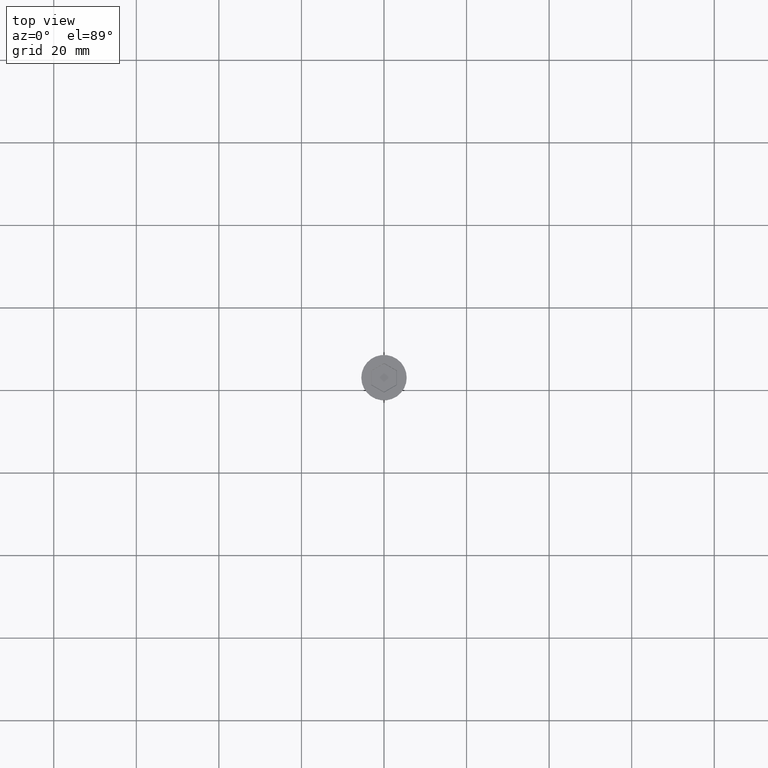
[diagram: clean part render]
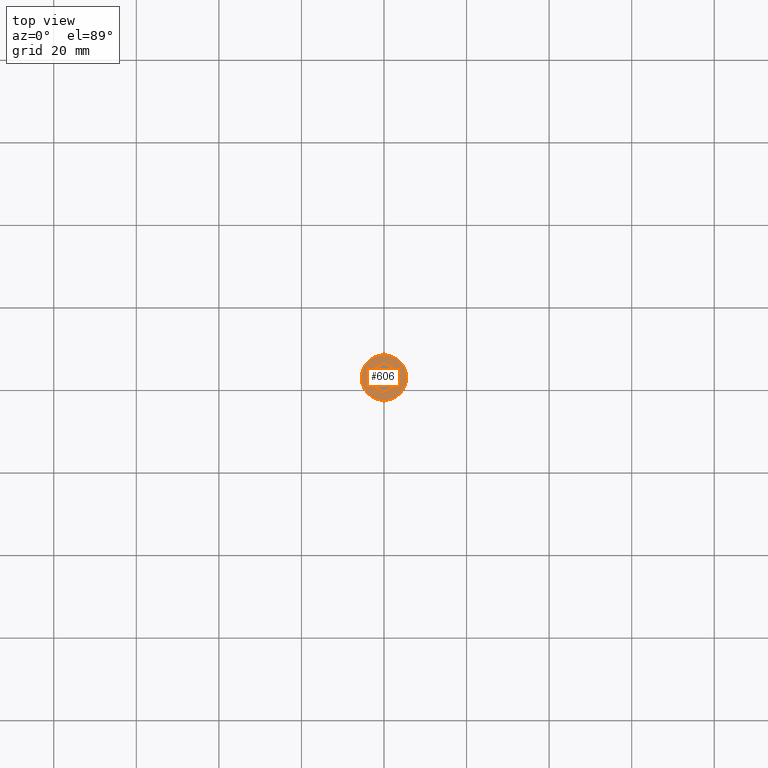
[diagram: same view with one face highlighted and labeled with its STEP entity id]
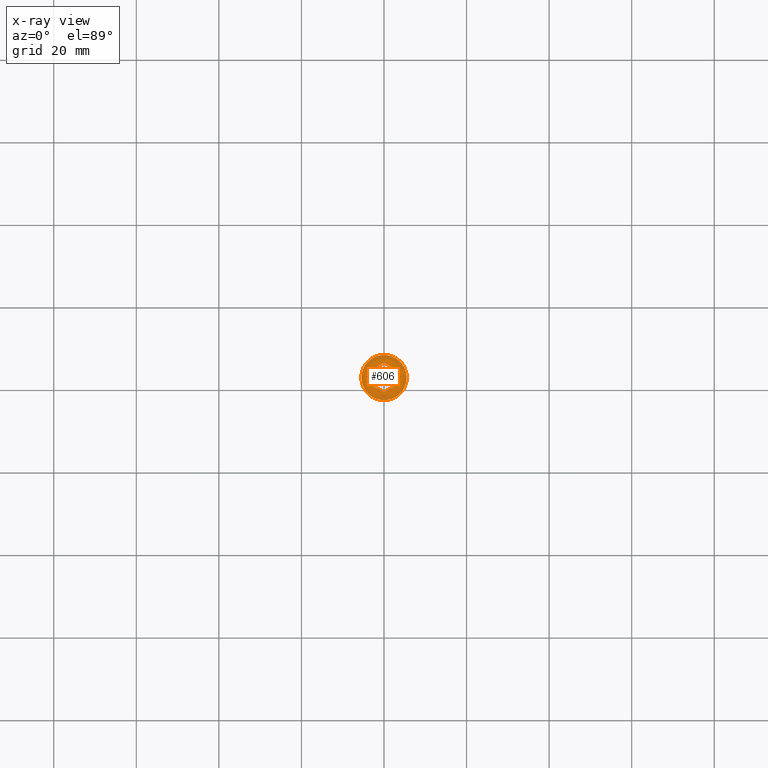
[diagram: x-ray of the same camera — body ghosted, the highlighted face saturated]
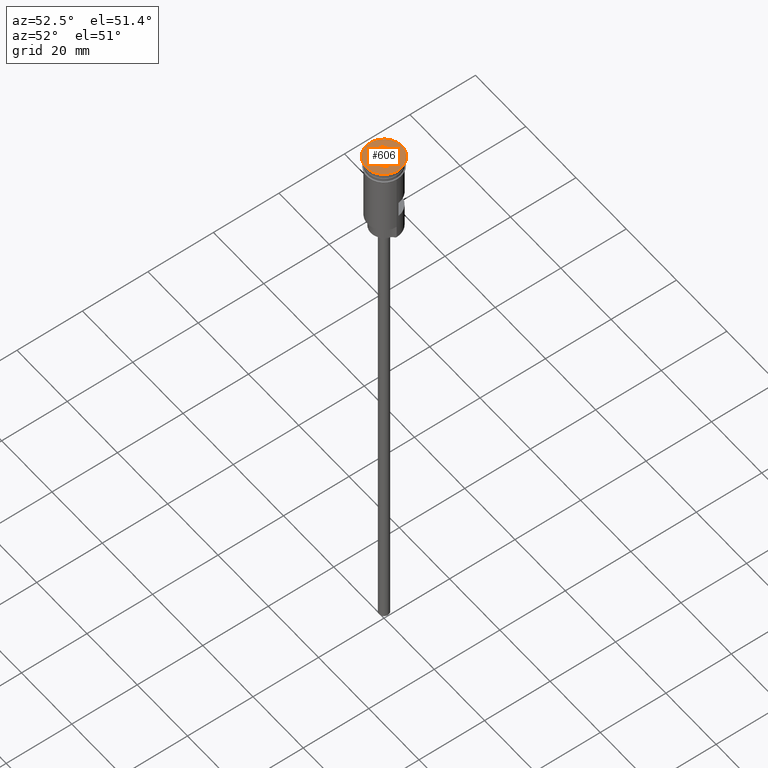
[diagram: same view with one face highlighted and labeled with its STEP entity id]
A machine part, top view. The second image highlights one B-rep face of the part: STEP entity #606.
The next image is the same camera in x-ray: the body ghosted, the highlighted face saturated — about 0% of this face is hidden behind the body in this view.
A second angle (auxiliary view) of the same face is appended — the face is thin or edge-on in the first view.
In plain terms, the highlighted planar face has unit normal (0, -0, 1).
Its self-contained STEP definition (entity closure, byte-faithful):
#17 = CARTESIAN_POINT ( 'NONE',  ( -3.099999999999983213, -1.789785834487829241, 0.000000000000000000 ) ) ;
#35 = VERTEX_POINT ( 'NONE', #1322 ) ;
#65 = DIRECTION ( 'NONE',  ( 0.8660254037844388186, -0.4999999999999997780, 0.000000000000000000 ) ) ;
#94 = PLANE ( 'NONE',  #771 ) ;
#117 = VERTEX_POINT ( 'NONE', #193 ) ;
#149 = ORIENTED_EDGE ( 'NONE', *, *, #570, .T. ) ;
#193 = CARTESIAN_POINT ( 'NONE',  ( 3.099999999999982769, -1.789785834487828353, 0.000000000000000000 ) ) ;
#207 = CIRCLE ( 'NONE', #1496, 5.500000000000000000 ) ;
#223 = VERTEX_POINT ( 'NONE', #1461 ) ;
#237 = AXIS2_PLACEMENT_3D ( 'NONE', #281, #631, #1117 ) ;
#244 = FACE_OUTER_BOUND ( 'NONE', #1039, .T. ) ;
#255 = DIRECTION ( 'NONE',  ( -0.8660254037844385966, -0.5000000000000001110, 0.000000000000000000 ) ) ;
#281 = CARTESIAN_POINT ( 'NONE',  ( 0.000000000000000000, 0.000000000000000000, 0.000000000000000000 ) ) ;
#308 = VERTEX_POINT ( 'NONE', #905 ) ;
#343 = DIRECTION ( 'NONE',  ( -1.251928832280966188E-16, -1.000000000000000000, 0.000000000000000000 ) ) ;
#410 = ORIENTED_EDGE ( 'NONE', *, *, #928, .T. ) ;
#415 = ORIENTED_EDGE ( 'NONE', *, *, #1387, .T. ) ;
#426 = EDGE_CURVE ( 'NONE', #550, #775, #638, .T. ) ;
#459 = LINE ( 'NONE', #1439, #1445 ) ;
#491 = CARTESIAN_POINT ( 'NONE',  ( 0.000000000000000000, 0.000000000000000000, 0.000000000000000000 ) ) ;
#524 = DIRECTION ( 'NONE',  ( -0.8660254037844387076, 0.4999999999999998335, 0.000000000000000000 ) ) ;
#527 = ORIENTED_EDGE ( 'NONE', *, *, #747, .T. ) ;
#546 = CARTESIAN_POINT ( 'NONE',  ( 3.049999999999991829, 1.818653347947307708, 0.000000000000000000 ) ) ;
#550 = VERTEX_POINT ( 'NONE', #811 ) ;
#558 = LINE ( 'NONE', #683, #1414 ) ;
#570 = EDGE_CURVE ( 'NONE', #35, #223, #684, .T. ) ;
#583 = LINE ( 'NONE', #1072, #1579 ) ;
#588 = DIRECTION ( 'NONE',  ( -0.000000000000000000, -0.000000000000000000, 1.000000000000000000 ) ) ;
#606 = ADVANCED_FACE ( 'NONE', ( #607, #244 ), #94, .T. ) ;
#607 = FACE_BOUND ( 'NONE', #1385, .T. ) ;
#622 = EDGE_CURVE ( 'NONE', #1591, #308, #207, .T. ) ;
#631 = DIRECTION ( 'NONE',  ( -0.000000000000000000, -0.000000000000000000, 1.000000000000000000 ) ) ;
#632 = EDGE_CURVE ( 'NONE', #1135, #35, #1345, .T. ) ;
#638 = LINE ( 'NONE', #1134, #1576 ) ;
#683 = CARTESIAN_POINT ( 'NONE',  ( -3.099999999999983213, 1.732050807568876971, 0.000000000000000000 ) ) ;
#684 = LINE ( 'NONE', #546, #1389 ) ;
#711 = DIRECTION ( 'NONE',  ( 0.8660254037844387076, 0.4999999999999998890, 0.000000000000000000 ) ) ;
#741 = DIRECTION ( 'NONE',  ( 1.000000000000000000, 0.000000000000000000, 0.000000000000000000 ) ) ;
#747 = EDGE_CURVE ( 'NONE', #308, #1591, #750, .T. ) ;
#750 = CIRCLE ( 'NONE', #237, 5.500000000000000000 ) ;
#771 = AXIS2_PLACEMENT_3D ( 'NONE', #1351, #1225, #1598 ) ;
#775 = VERTEX_POINT ( 'NONE', #17 ) ;
#796 = VECTOR ( 'NONE', #711, 1000.000000000000000 ) ;
#811 = CARTESIAN_POINT ( 'NONE',  ( -1.958864205101993824E-16, -3.579571668975658927, 0.000000000000000000 ) ) ;
#831 = ORIENTED_EDGE ( 'NONE', *, *, #632, .T. ) ;
#852 = CARTESIAN_POINT ( 'NONE',  ( -0.04999999999999187039, 3.550704155516183125, 0.000000000000000000 ) ) ;
#893 = ORIENTED_EDGE ( 'NONE', *, *, #622, .T. ) ;
#905 = CARTESIAN_POINT ( 'NONE',  ( -5.500000000000000000, 6.735557395310442023E-16, 0.000000000000000000 ) ) ;
#928 = EDGE_CURVE ( 'NONE', #775, #1135, #558, .T. ) ;
#1039 = EDGE_LOOP ( 'NONE', ( #893, #527 ) ) ;
#1070 = EDGE_CURVE ( 'NONE', #117, #550, #459, .T. ) ;
#1072 = CARTESIAN_POINT ( 'NONE',  ( 3.099999999999982769, -1.732050807568876083, 0.000000000000000000 ) ) ;
#1117 = DIRECTION ( 'NONE',  ( 1.000000000000000000, 0.000000000000000000, 0.000000000000000000 ) ) ;
#1134 = CARTESIAN_POINT ( 'NONE',  ( -3.049999999999991385, -1.818653347947305932, 0.000000000000000000 ) ) ;
#1135 = VERTEX_POINT ( 'NONE', #1326 ) ;
#1225 = DIRECTION ( 'NONE',  ( 0.000000000000000000, -0.000000000000000000, 1.000000000000000000 ) ) ;
#1285 = DIRECTION ( 'NONE',  ( 0.000000000000000000, 1.000000000000000000, 0.000000000000000000 ) ) ;
#1322 = CARTESIAN_POINT ( 'NONE',  ( 6.103073414120078086E-16, 3.579571668975660259, 0.000000000000000000 ) ) ;
#1326 = CARTESIAN_POINT ( 'NONE',  ( -3.099999999999983213, 1.789785834487829908, 0.000000000000000000 ) ) ;
#1345 = LINE ( 'NONE', #852, #796 ) ;
#1351 = CARTESIAN_POINT ( 'NONE',  ( 0.000000000000000000, 0.000000000000000000, 0.000000000000000000 ) ) ;
#1385 = EDGE_LOOP ( 'NONE', ( #410, #831, #149, #415, #1490, #1404 ) ) ;
#1387 = EDGE_CURVE ( 'NONE', #223, #117, #583, .T. ) ;
#1389 = VECTOR ( 'NONE', #65, 1000.000000000000114 ) ;
#1404 = ORIENTED_EDGE ( 'NONE', *, *, #426, .T. ) ;
#1414 = VECTOR ( 'NONE', #1285, 1000.000000000000000 ) ;
#1439 = CARTESIAN_POINT ( 'NONE',  ( 0.04999999999999141936, -3.550704155516182237, 0.000000000000000000 ) ) ;
#1445 = VECTOR ( 'NONE', #255, 1000.000000000000114 ) ;
#1461 = CARTESIAN_POINT ( 'NONE',  ( 3.099999999999983213, 1.789785834487831462, 0.000000000000000000 ) ) ;
#1490 = ORIENTED_EDGE ( 'NONE', *, *, #1070, .T. ) ;
#1496 = AXIS2_PLACEMENT_3D ( 'NONE', #491, #588, #741 ) ;
#1566 = CARTESIAN_POINT ( 'NONE',  ( 5.500000000000000000, 0.000000000000000000, 0.000000000000000000 ) ) ;
#1576 = VECTOR ( 'NONE', #524, 1000.000000000000000 ) ;
#1579 = VECTOR ( 'NONE', #343, 1000.000000000000000 ) ;
#1591 = VERTEX_POINT ( 'NONE', #1566 ) ;
#1598 = DIRECTION ( 'NONE',  ( 1.000000000000000000, 0.000000000000000000, 0.000000000000000000 ) ) ;